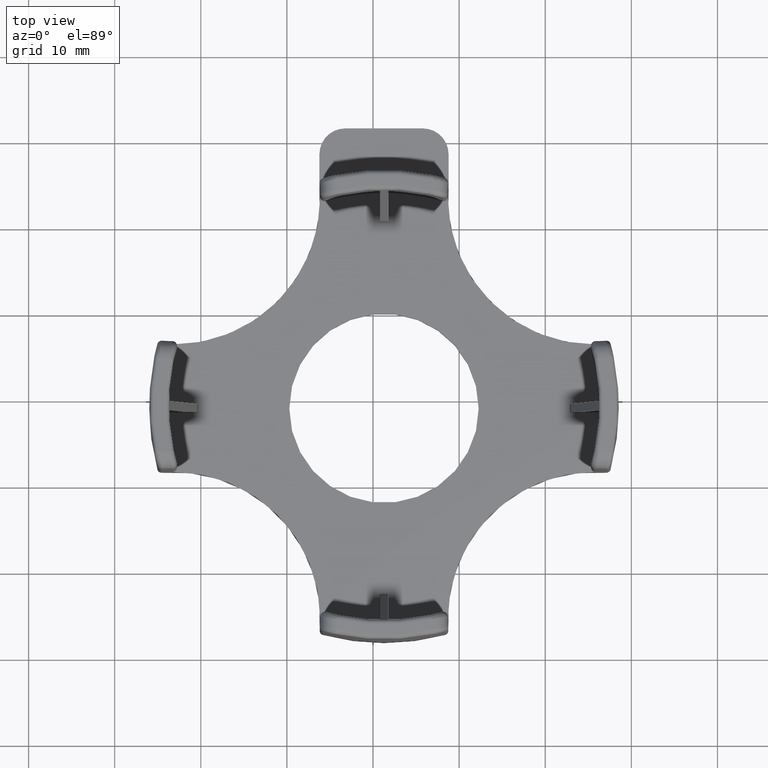
[diagram: clean part render]
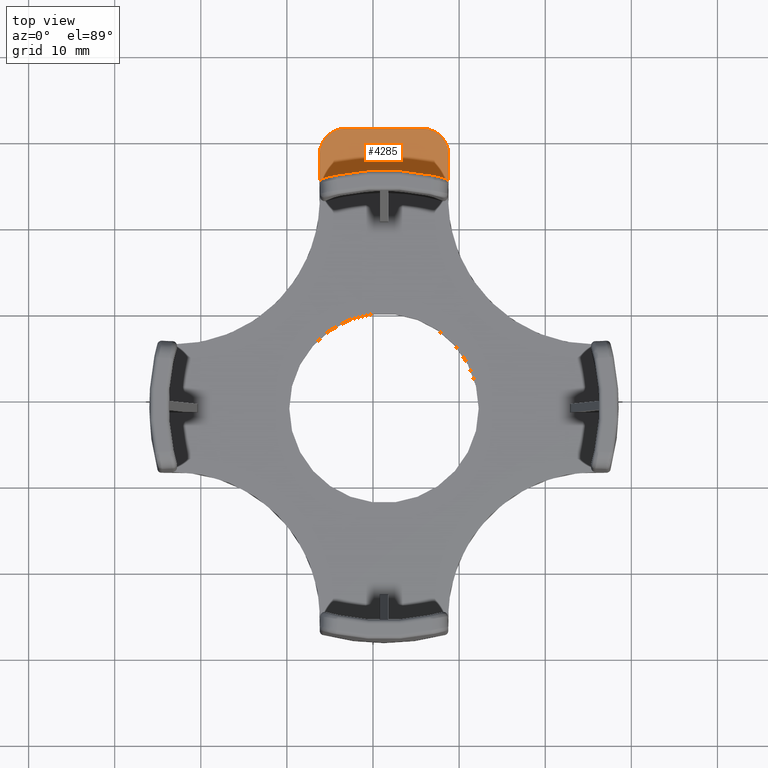
[diagram: same view with one face highlighted and labeled with its STEP entity id]
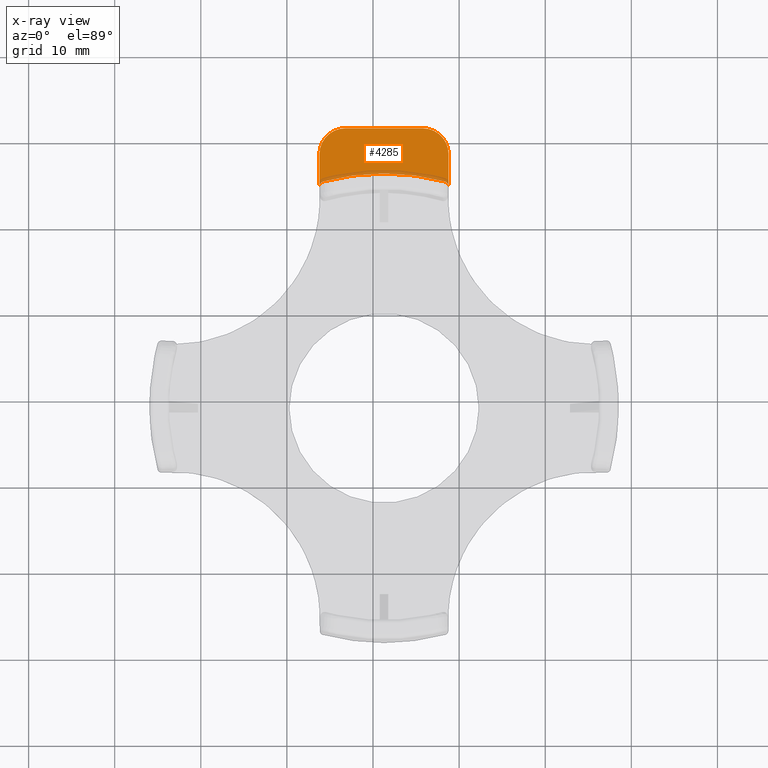
[diagram: x-ray of the same camera — body ghosted, the highlighted face saturated]
A machine part, top view. The second image highlights one B-rep face of the part: STEP entity #4285.
The next image is the same camera in x-ray: the body ghosted, the highlighted face saturated — about 7% of this face is hidden behind the body in this view.
In plain terms, the highlighted planar face has unit normal (0, 0, 1).
Its self-contained STEP definition (entity closure, byte-faithful):
#925=CARTESIAN_POINT('',(8.737622886488129,25.010197204950259,2.500000000000000));
#926=VERTEX_POINT('',#925);
#927=CARTESIAN_POINT('',(8.369430360098384,25.533605366987864,2.500000000000000));
#928=VERTEX_POINT('',#927);
#929=CARTESIAN_POINT('',(8.239277640805787,25.050842205944342,2.500000000000000));
#930=DIRECTION('',(0.0,0.0,-1.0));
#931=DIRECTION('',(0.817903292611814,0.575355719476875,0.0));
#932=AXIS2_PLACEMENT_3D('',#929,#930,#931);
#933=CIRCLE('',#932,0.500000000000000);
#934=EDGE_CURVE('',#926,#928,#933,.F.);
#1255=CARTESIAN_POINT('',(-6.185408569184698,25.010197204950259,2.500000000000000));
#1256=VERTEX_POINT('',#1255);
#1257=CARTESIAN_POINT('',(-5.817216042794954,25.533605366987864,2.500000000000000));
#1258=VERTEX_POINT('',#1257);
#1259=CARTESIAN_POINT('',(-5.687063323502356,25.050842205944342,2.500000000000000));
#1260=DIRECTION('',(0.0,0.0,-1.0));
#1261=DIRECTION('',(-0.817903292611813,0.575355719476877,0.0));
#1262=AXIS2_PLACEMENT_3D('',#1259,#1260,#1261);
#1263=CIRCLE('',#1262,0.500000000000000);
#1264=EDGE_CURVE('',#1256,#1258,#1263,.T.);
#1292=CARTESIAN_POINT('',(1.276107158651716,-0.776986909884554,2.500000000000000));
#1293=DIRECTION('',(0.0,0.0,-1.0));
#1294=DIRECTION('',(0.275229357798165,0.961378593794354,0.0));
#1295=AXIS2_PLACEMENT_3D('',#1292,#1293,#1294);
#1296=CIRCLE('',#1295,27.250000000000004);
#1297=EDGE_CURVE('',#1258,#928,#1296,.T.);
#2234=CARTESIAN_POINT('',(8.776107158651715,25.420579771011596,2.500000000000000));
#2235=VERTEX_POINT('',#2234);
#2242=CARTESIAN_POINT('',(25.681361239687661,23.628267171151389,2.500000000000000));
#2243=DIRECTION('',(0.0,0.0,-1.000000000000000));
#2244=DIRECTION('',(0.994426710649173,-0.105430152932953,0.0));
#2245=AXIS2_PLACEMENT_3D('',#2242,#2243,#2244);
#2246=CIRCLE('',#2245,17.0);
#2247=EDGE_CURVE('',#926,#2235,#2246,.T.);
#3680=CARTESIAN_POINT('',(-6.223892841348286,25.420579771011596,2.500000000000000));
#3681=VERTEX_POINT('',#3680);
#3682=CARTESIAN_POINT('',(-23.129146922384226,23.628267171151389,2.500000000000000));
#3683=DIRECTION('',(0.0,0.0,-1.000000000000000));
#3684=DIRECTION('',(0.105430152932953,0.994426710649173,0.0));
#3685=AXIS2_PLACEMENT_3D('',#3682,#3683,#3684);
#3686=CIRCLE('',#3685,17.0);
#3687=EDGE_CURVE('',#3681,#1256,#3686,.T.);
#4233=CARTESIAN_POINT('',(1.276107158651710,28.551696380516933,2.500000000000000));
#4234=DIRECTION('',(0.0,0.0,1.0));
#4235=DIRECTION('',(1.0,0.0,0.0));
#4236=AXIS2_PLACEMENT_3D('',#4233,#4234,#4235);
#4237=PLANE('',#4236);
#4238=CARTESIAN_POINT('',(-3.223892841348292,31.723013090115451,2.500000000000000));
#4239=VERTEX_POINT('',#4238);
#4240=CARTESIAN_POINT('',(5.776107158651708,31.723013090115447,2.500000000000000));
#4241=VERTEX_POINT('',#4240);
#4242=CARTESIAN_POINT('',(-3.223892841348292,31.723013090115451,2.500000000000000));
#4243=DIRECTION('',(1.0,0.0,0.0));
#4244=VECTOR('',#4243,9.0);
#4245=LINE('',#4242,#4244);
#4246=EDGE_CURVE('',#4239,#4241,#4245,.T.);
#4247=ORIENTED_EDGE('',*,*,#4246,.F.);
#4248=CARTESIAN_POINT('',(-6.223892841348292,28.723013090115444,2.500000000000000));
#4249=VERTEX_POINT('',#4248);
#4250=CARTESIAN_POINT('',(-3.223892841348292,28.723013090115444,2.500000000000000));
#4251=DIRECTION('',(0.0,0.0,-1.0));
#4252=DIRECTION('',(0.0,1.0,0.0));
#4253=AXIS2_PLACEMENT_3D('',#4250,#4251,#4252);
#4254=CIRCLE('',#4253,3.000000000000000);
#4255=EDGE_CURVE('',#4249,#4239,#4254,.T.);
#4256=ORIENTED_EDGE('',*,*,#4255,.F.);
#4257=CARTESIAN_POINT('',(-6.223892841348286,25.420579771011596,2.500000000000000));
#4258=DIRECTION('',(0.0,1.0,0.0));
#4259=VECTOR('',#4258,3.302433319103848);
#4260=LINE('',#4257,#4259);
#4261=EDGE_CURVE('',#3681,#4249,#4260,.T.);
#4262=ORIENTED_EDGE('',*,*,#4261,.F.);
#4263=ORIENTED_EDGE('',*,*,#3687,.T.);
#4264=ORIENTED_EDGE('',*,*,#1264,.T.);
#4265=ORIENTED_EDGE('',*,*,#1297,.T.);
#4266=ORIENTED_EDGE('',*,*,#934,.F.);
#4267=ORIENTED_EDGE('',*,*,#2247,.T.);
#4268=CARTESIAN_POINT('',(8.776107158651708,28.723013090115444,2.500000000000000));
#4269=VERTEX_POINT('',#4268);
#4270=CARTESIAN_POINT('',(8.776107158651708,28.723013090115444,2.500000000000000));
#4271=DIRECTION('',(0.0,-1.0,0.0));
#4272=VECTOR('',#4271,3.302433319103848);
#4273=LINE('',#4270,#4272);
#4274=EDGE_CURVE('',#4269,#2235,#4273,.T.);
#4275=ORIENTED_EDGE('',*,*,#4274,.F.);
#4276=CARTESIAN_POINT('',(5.776107158651708,28.723013090115444,2.500000000000000));
#4277=DIRECTION('',(0.0,0.0,-1.0));
#4278=DIRECTION('',(1.0,0.0,0.0));
#4279=AXIS2_PLACEMENT_3D('',#4276,#4277,#4278);
#4280=CIRCLE('',#4279,3.000000000000000);
#4281=EDGE_CURVE('',#4241,#4269,#4280,.T.);
#4282=ORIENTED_EDGE('',*,*,#4281,.F.);
#4283=EDGE_LOOP('',(#4247,#4256,#4262,#4263,#4264,#4265,#4266,#4267,#4275,#4282));
#4284=FACE_OUTER_BOUND('',#4283,.T.);
#4285=ADVANCED_FACE('',(#4284),#4237,.T.);